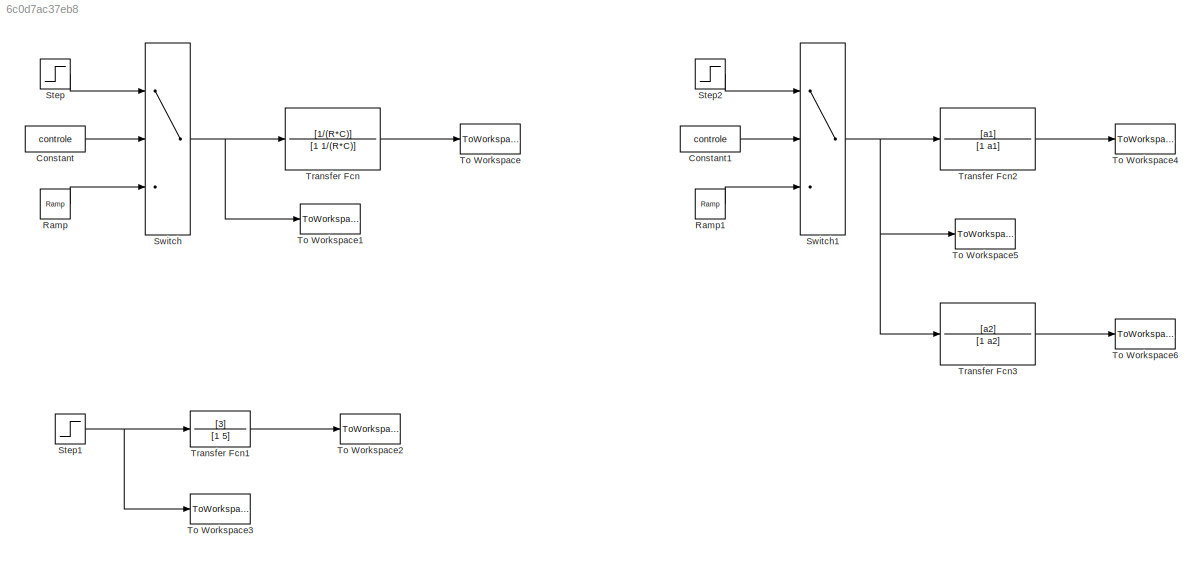
MODEL slx_6c0d7ac37eb8
KIND model
CONFIG AbsTol = auto
CONFIG EnableMultiTasking = off
CONFIG FixedStep = 1e-3
CONFIG MaxStep = auto
CONFIG MinStep = auto
CONFIG RelTol = 1e-3
CONFIG SampleTimeConstraint = Unconstrained
CONFIG Solver = FixedStepAuto
CONFIG SolverName = FixedStepAuto
CONFIG StartTime = 0.0
CONFIG StopTime = 50
BLOCK [Constant] Constant
  Commented = on
  Value = controle
BLOCK [Constant] Constant1
  Value = controle
BLOCK [Reference] Ramp  REF=simulink/Sources/Ramp
  Commented = on
  Ports = [0, 1]
  SourceBlock = simulink/Sources/Ramp
  SourceProductBaseCode = SL
  SourceProductName = Simulink
  SourceType = Ramp
BLOCK [Reference] Ramp1  REF=simulink/Sources/Ramp
  Ports = [0, 1]
  SourceBlock = simulink/Sources/Ramp
  SourceProductBaseCode = SL
  SourceProductName = Simulink
  SourceType = Ramp
BLOCK [Step] Step
  After = 5
  Commented = on
  SampleTime = 0
  Time = 0
BLOCK [Step] Step1
  After = 2
  Commented = on
  SampleTime = 0
  Time = 0
BLOCK [Step] Step2
  After = r
  SampleTime = 0
  Time = 0
BLOCK [Switch] Switch
  Commented = on
  Criteria = u2 > Threshold
  InputSameDT = off
  SaturateOnIntegerOverflow = off
BLOCK [Switch] Switch1
  Criteria = u2 > Threshold
  InputSameDT = off
  SaturateOnIntegerOverflow = off
BLOCK [ToWorkspace] To Workspace
  Commented = on
  FixptAsFi = on
  MaxDataPoints = inf
  Ports = [1]
  SampleTime = -1
  VariableName = Vc
BLOCK [ToWorkspace] To Workspace1
  Commented = on
  FixptAsFi = on
  MaxDataPoints = inf
  Ports = [1]
  SampleTime = -1
  VariableName = Ve
BLOCK [ToWorkspace] To Workspace2
  Commented = on
  FixptAsFi = on
  MaxDataPoints = inf
  Ports = [1]
  SampleTime = -1
  VariableName = C
BLOCK [ToWorkspace] To Workspace3
  Commented = on
  FixptAsFi = on
  MaxDataPoints = inf
  Ports = [1]
  SampleTime = -1
  VariableName = R
BLOCK [ToWorkspace] To Workspace4
  FixptAsFi = on
  MaxDataPoints = inf
  Ports = [1]
  SampleTime = -1
  VariableName = theta_out1
BLOCK [ToWorkspace] To Workspace5
  FixptAsFi = on
  MaxDataPoints = inf
  Ports = [1]
  SampleTime = -1
  VariableName = theta_in
BLOCK [ToWorkspace] To Workspace6
  FixptAsFi = on
  MaxDataPoints = inf
  Ports = [1]
  SampleTime = -1
  VariableName = theta_out2
BLOCK [TransferFcn] Transfer Fcn
  Commented = on
  Denominator = [1 1/(R*C)]
  Numerator = [1/(R*C)]
BLOCK [TransferFcn] Transfer Fcn1
  Commented = on
  Denominator = [1 5]
  Numerator = [3]
BLOCK [TransferFcn] Transfer Fcn2
  Denominator = [1 a1]
  Numerator = [a1]
BLOCK [TransferFcn] Transfer Fcn3
  Denominator = [1 a2]
  Numerator = [a2]
LINE Constant1:1 -> Switch1:2
LINE Constant:1 -> Switch:2
LINE Ramp1:1 -> Switch1:3
LINE Ramp:1 -> Switch:3
NET Step1:1 -> To Workspace3:1, Transfer Fcn1:1
LINE Step2:1 -> Switch1:1
LINE Step:1 -> Switch:1
NET Switch1:1 -> To Workspace5:1, Transfer Fcn2:1, Transfer Fcn3:1
NET Switch:1 -> To Workspace1:1, Transfer Fcn:1
LINE Transfer Fcn1:1 -> To Workspace2:1
LINE Transfer Fcn2:1 -> To Workspace4:1
LINE Transfer Fcn3:1 -> To Workspace6:1
LINE Transfer Fcn:1 -> To Workspace:1
note: NET lines group one-source signal fan-out (src -> all destinations, sorted); 1:1 wires keep LINE
